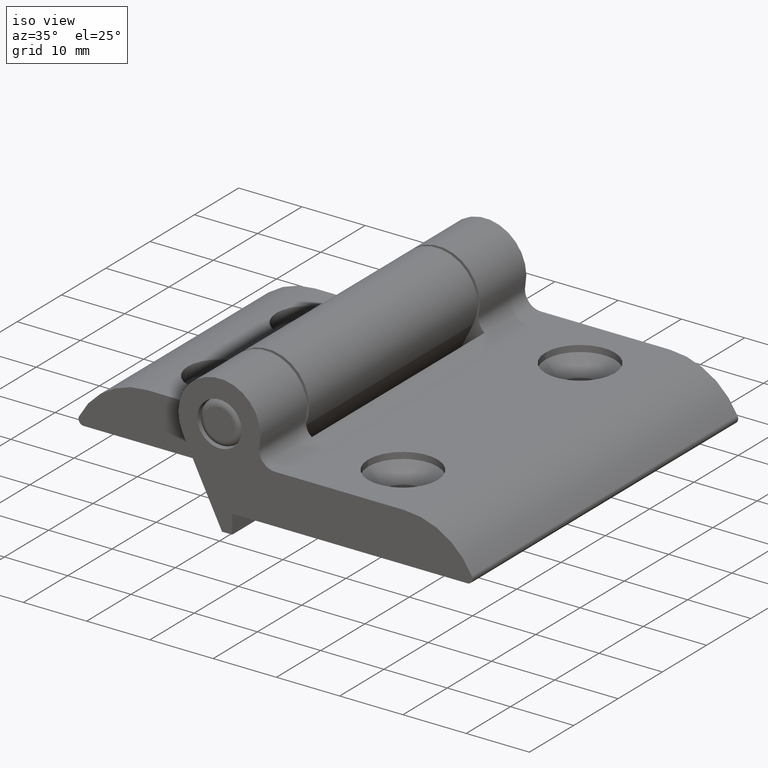
[diagram: clean part render]
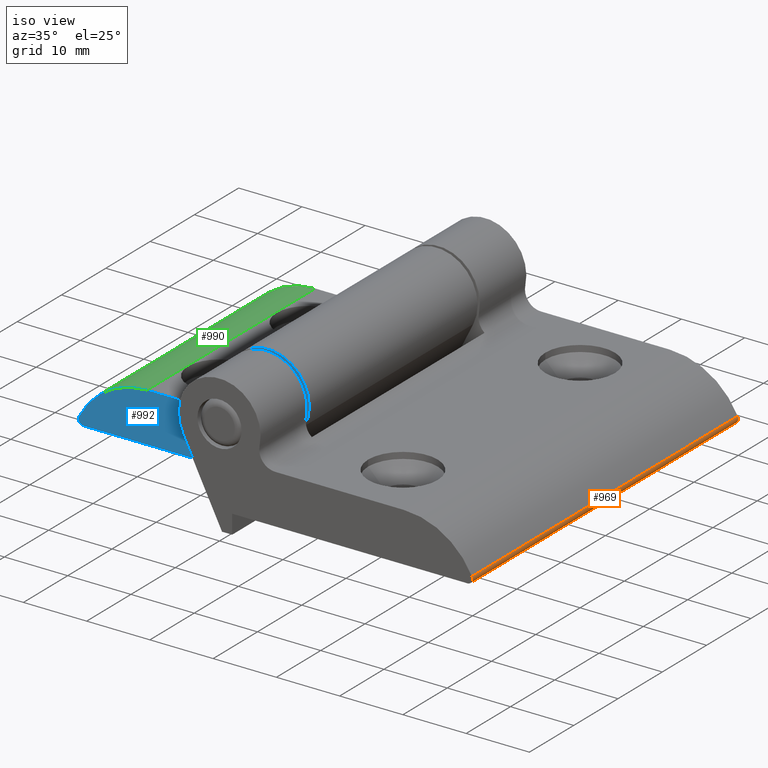
[diagram: same view with three faces highlighted in distinct colors, each labeled with its STEP entity id]
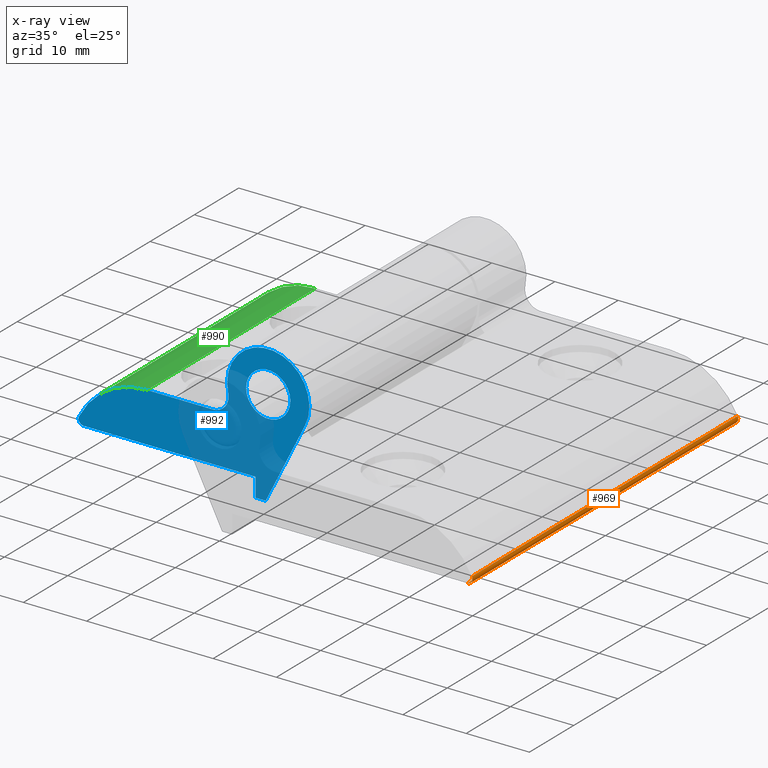
[diagram: x-ray of the same camera — body ghosted, the three highlighted faces saturated]
A machine part, iso view with three faces highlighted in distinct colors.
The next image is the same camera in x-ray (body ghosted, the three faces saturated) — at least one of them is partly hidden behind the body in this view.
Their STEP definitions:

[orange] entity #969 — the highlighted face is a freeform B-spline surface patch.
#37=B_SPLINE_CURVE_WITH_KNOTS('',3,(#1668,#1669,#1670,#1671,#1672,#1673),
 .UNSPECIFIED.,.F.,.F.,(4,1,1,4),(0.228202346334164,0.285714285714286,0.571428571428571,
1.),.UNSPECIFIED.);
#38=B_SPLINE_CURVE_WITH_KNOTS('',3,(#1675,#1676,#1677,#1678),
 .UNSPECIFIED.,.F.,.F.,(4,4),(-6.,0.),.UNSPECIFIED.);
#39=B_SPLINE_CURVE_WITH_KNOTS('',3,(#1680,#1681,#1682,#1683,#1684,#1685),
 .UNSPECIFIED.,.F.,.F.,(4,1,1,4),(-1.,-0.571428571428571,-0.285714285714286,
-0.228202346334164),.UNSPECIFIED.);
#40=B_SPLINE_CURVE_WITH_KNOTS('',3,(#1687,#1688,#1689,#1690),
 .UNSPECIFIED.,.F.,.F.,(4,4),(-0.228202346334164,0.),.UNSPECIFIED.);
#41=B_SPLINE_CURVE_WITH_KNOTS('',3,(#1692,#1693,#1694,#1695),
 .UNSPECIFIED.,.F.,.F.,(4,4),(0.,6.),.UNSPECIFIED.);
#42=B_SPLINE_CURVE_WITH_KNOTS('',3,(#1696,#1697,#1698,#1699),
 .UNSPECIFIED.,.F.,.F.,(4,4),(0.,0.228202346334164),.UNSPECIFIED.);
#49=B_SPLINE_SURFACE_WITH_KNOTS('',3,3,((#1642,#1643,#1644,#1645),(#1646,
#1647,#1648,#1649),(#1650,#1651,#1652,#1653),(#1654,#1655,#1656,#1657),
(#1658,#1659,#1660,#1661),(#1662,#1663,#1664,#1665)),.UNSPECIFIED.,.F.,
 .F.,.F.,(4,1,1,4),(4,4),(0.,0.285714285714286,0.571428571428571,1.),(0.,
6.),.UNSPECIFIED.);
#126=FACE_OUTER_BOUND('',#177,.T.);
#177=EDGE_LOOP('',(#766,#767,#768,#769,#770,#771));
#463=VERTEX_POINT('',#1666);
#464=VERTEX_POINT('',#1667);
#465=VERTEX_POINT('',#1674);
#466=VERTEX_POINT('',#1679);
#467=VERTEX_POINT('',#1686);
#468=VERTEX_POINT('',#1691);
#582=EDGE_CURVE('',#463,#464,#37,.T.);
#583=EDGE_CURVE('',#464,#465,#38,.T.);
#584=EDGE_CURVE('',#465,#466,#39,.T.);
#585=EDGE_CURVE('',#466,#467,#40,.T.);
#586=EDGE_CURVE('',#467,#468,#41,.T.);
#587=EDGE_CURVE('',#468,#463,#42,.T.);
#766=ORIENTED_EDGE('',*,*,#582,.T.);
#767=ORIENTED_EDGE('',*,*,#583,.T.);
#768=ORIENTED_EDGE('',*,*,#584,.T.);
#769=ORIENTED_EDGE('',*,*,#585,.T.);
#770=ORIENTED_EDGE('',*,*,#586,.T.);
#771=ORIENTED_EDGE('',*,*,#587,.T.);
#969=ADVANCED_FACE('',(#126),#49,.F.);
#1642=CARTESIAN_POINT('Ctrl Pts',(39.9140261061395,30.,-11.1248543994776));
#1643=CARTESIAN_POINT('Ctrl Pts',(39.9140261061395,10.,-11.1248543994776));
#1644=CARTESIAN_POINT('Ctrl Pts',(39.9140261061395,-10.,-11.1248543994776));
#1645=CARTESIAN_POINT('Ctrl Pts',(39.9140261061395,-30.,-11.1248543994776));
#1646=CARTESIAN_POINT('Ctrl Pts',(39.9844922625149,30.,-11.2655053740222));
#1647=CARTESIAN_POINT('Ctrl Pts',(39.9844922625149,10.,-11.2655053740222));
#1648=CARTESIAN_POINT('Ctrl Pts',(39.9844922625149,-10.,-11.2655053740222));
#1649=CARTESIAN_POINT('Ctrl Pts',(39.9844922625149,-30.,-11.2655053740222));
#1650=CARTESIAN_POINT('Ctrl Pts',(40.0407595921038,30.,-11.5879287519314));
#1651=CARTESIAN_POINT('Ctrl Pts',(40.0407595921038,10.,-11.5879287519314));
#1652=CARTESIAN_POINT('Ctrl Pts',(40.0407595921038,-10.,-11.5879287519314));
#1653=CARTESIAN_POINT('Ctrl Pts',(40.0407595921038,-30.,-11.5879287519314));
#1654=CARTESIAN_POINT('Ctrl Pts',(39.8135844392406,30.,-12.1166805367457));
#1655=CARTESIAN_POINT('Ctrl Pts',(39.8135844392406,10.,-12.1166805367457));
#1656=CARTESIAN_POINT('Ctrl Pts',(39.8135844392406,-10.,-12.1166805367457));
#1657=CARTESIAN_POINT('Ctrl Pts',(39.8135844392406,-30.,-12.1166805367457));
#1658=CARTESIAN_POINT('Ctrl Pts',(39.4243687454637,30.,-12.3));
#1659=CARTESIAN_POINT('Ctrl Pts',(39.4243687454637,10.,-12.3));
#1660=CARTESIAN_POINT('Ctrl Pts',(39.4243687454637,-10.,-12.3));
#1661=CARTESIAN_POINT('Ctrl Pts',(39.4243687454637,-30.,-12.3));
#1662=CARTESIAN_POINT('Ctrl Pts',(39.1883954511527,30.,-12.3));
#1663=CARTESIAN_POINT('Ctrl Pts',(39.1883954511527,10.,-12.3));
#1664=CARTESIAN_POINT('Ctrl Pts',(39.1883954511527,-10.,-12.3));
#1665=CARTESIAN_POINT('Ctrl Pts',(39.1883954511527,-30.,-12.3));
#1666=CARTESIAN_POINT('',(40.,-30.,-11.4883954511528));
#1667=CARTESIAN_POINT('',(39.1883954511527,-30.,-12.3));
#1668=CARTESIAN_POINT('Ctrl Pts',(39.9997218378176,-30.,-11.488161456285));
#1669=CARTESIAN_POINT('Ctrl Pts',(39.999756441912,-30.,-11.5197933238789));
#1670=CARTESIAN_POINT('Ctrl Pts',(39.9889176891916,-30.,-11.7085911498544));
#1671=CARTESIAN_POINT('Ctrl Pts',(39.8135844392406,-30.,-12.1166805367457));
#1672=CARTESIAN_POINT('Ctrl Pts',(39.4243687454637,-30.,-12.3));
#1673=CARTESIAN_POINT('Ctrl Pts',(39.1883954511527,-30.,-12.3));
#1674=CARTESIAN_POINT('',(39.1883954511527,30.,-12.3));
#1675=CARTESIAN_POINT('Ctrl Pts',(39.1883954511527,-30.,-12.3));
#1676=CARTESIAN_POINT('Ctrl Pts',(39.1883954511527,-10.,-12.3));
#1677=CARTESIAN_POINT('Ctrl Pts',(39.1883954511527,10.,-12.3));
#1678=CARTESIAN_POINT('Ctrl Pts',(39.1883954511527,30.,-12.3));
#1679=CARTESIAN_POINT('',(40.,30.,-11.4883954511528));
#1680=CARTESIAN_POINT('Ctrl Pts',(39.1883954511527,30.,-12.3));
#1681=CARTESIAN_POINT('Ctrl Pts',(39.4243687454637,30.,-12.3));
#1682=CARTESIAN_POINT('Ctrl Pts',(39.8135844392406,30.,-12.1166805367457));
#1683=CARTESIAN_POINT('Ctrl Pts',(39.9889176891916,30.,-11.7085911498544));
#1684=CARTESIAN_POINT('Ctrl Pts',(39.999756441912,30.,-11.5197933238789));
#1685=CARTESIAN_POINT('Ctrl Pts',(39.9997218378176,30.,-11.488161456285));
#1686=CARTESIAN_POINT('',(39.9140261061395,30.,-11.1248543994776));
#1687=CARTESIAN_POINT('Ctrl Pts',(39.9997218378176,30.,-11.488161456285));
#1688=CARTESIAN_POINT('Ctrl Pts',(39.9995845317968,30.,-11.3626489717178));
#1689=CARTESIAN_POINT('Ctrl Pts',(39.9703080039166,30.,-11.237193487896));
#1690=CARTESIAN_POINT('Ctrl Pts',(39.9140261061395,30.,-11.1248543994776));
#1691=CARTESIAN_POINT('',(39.9140261061395,-30.,-11.1248543994776));
#1692=CARTESIAN_POINT('Ctrl Pts',(39.9140261061395,30.,-11.1248543994776));
#1693=CARTESIAN_POINT('Ctrl Pts',(39.9140261061395,10.,-11.1248543994776));
#1694=CARTESIAN_POINT('Ctrl Pts',(39.9140261061395,-10.,-11.1248543994776));
#1695=CARTESIAN_POINT('Ctrl Pts',(39.9140261061395,-30.,-11.1248543994776));
#1696=CARTESIAN_POINT('Ctrl Pts',(39.9140261061395,-30.,-11.1248543994776));
#1697=CARTESIAN_POINT('Ctrl Pts',(39.9703080039166,-30.,-11.237193487896));
#1698=CARTESIAN_POINT('Ctrl Pts',(39.9995845317968,-30.,-11.3626489717178));
#1699=CARTESIAN_POINT('Ctrl Pts',(39.9997218378176,-30.,-11.488161456285));

[blue] entity #992 — the highlighted planar face has unit normal (-0, -1, -0).
#45=B_SPLINE_CURVE_WITH_KNOTS('',3,(#1801,#1802,#1803,#1804,#1805,#1806),
 .UNSPECIFIED.,.F.,.F.,(4,1,1,4),(-1.,-0.571428571428571,-0.285714285714286,
-0.228202346334165),.UNSPECIFIED.);
#46=B_SPLINE_CURVE_WITH_KNOTS('',3,(#1808,#1809,#1810,#1811),
 .UNSPECIFIED.,.F.,.F.,(4,4),(-0.228202346334165,0.),.UNSPECIFIED.);
#64=FACE_BOUND('',#212,.T.);
#84=PLANE('',#1184);
#149=FACE_OUTER_BOUND('',#211,.T.);
#211=EDGE_LOOP('',(#911,#912,#913,#914,#915,#916,#917,#918,#919,#920));
#212=EDGE_LOOP('',(#921,#922));
#269=LINE('',#1826,#336);
#277=LINE('',#1853,#344);
#279=LINE('',#1857,#346);
#281=LINE('',#1860,#348);
#283=LINE('',#1866,#350);
#336=VECTOR('',#1423,10.);
#344=VECTOR('',#1449,10.);
#346=VECTOR('',#1453,10.);
#348=VECTOR('',#1457,10.);
#350=VECTOR('',#1465,10.);
#397=CIRCLE('',#1166,3.5);
#398=CIRCLE('',#1167,3.5);
#403=CIRCLE('',#1175,2.5);
#404=CIRCLE('',#1177,6.5);
#405=CIRCLE('',#1182,12.);
#485=VERTEX_POINT('',#1756);
#486=VERTEX_POINT('',#1757);
#490=VERTEX_POINT('',#1795);
#491=VERTEX_POINT('',#1800);
#492=VERTEX_POINT('',#1807);
#495=VERTEX_POINT('',#1824);
#502=VERTEX_POINT('',#1842);
#503=VERTEX_POINT('',#1844);
#504=VERTEX_POINT('',#1848);
#505=VERTEX_POINT('',#1852);
#506=VERTEX_POINT('',#1856);
#507=VERTEX_POINT('',#1862);
#615=EDGE_CURVE('',#485,#486,#397,.T.);
#616=EDGE_CURVE('',#486,#485,#398,.T.);
#621=EDGE_CURVE('',#490,#491,#45,.T.);
#622=EDGE_CURVE('',#491,#492,#46,.T.);
#627=EDGE_CURVE('',#490,#495,#269,.T.);
#636=EDGE_CURVE('',#503,#502,#403,.T.);
#638=EDGE_CURVE('',#504,#503,#404,.T.);
#640=EDGE_CURVE('',#505,#504,#277,.T.);
#642=EDGE_CURVE('',#506,#505,#279,.T.);
#644=EDGE_CURVE('',#495,#506,#281,.T.);
#645=EDGE_CURVE('',#507,#492,#405,.T.);
#647=EDGE_CURVE('',#502,#507,#283,.T.);
#911=ORIENTED_EDGE('',*,*,#621,.F.);
#912=ORIENTED_EDGE('',*,*,#627,.T.);
#913=ORIENTED_EDGE('',*,*,#644,.T.);
#914=ORIENTED_EDGE('',*,*,#642,.T.);
#915=ORIENTED_EDGE('',*,*,#640,.T.);
#916=ORIENTED_EDGE('',*,*,#638,.T.);
#917=ORIENTED_EDGE('',*,*,#636,.T.);
#918=ORIENTED_EDGE('',*,*,#647,.T.);
#919=ORIENTED_EDGE('',*,*,#645,.T.);
#920=ORIENTED_EDGE('',*,*,#622,.F.);
#921=ORIENTED_EDGE('',*,*,#615,.T.);
#922=ORIENTED_EDGE('',*,*,#616,.T.);
#992=ADVANCED_FACE('',(#149,#64),#84,.T.);
#1166=AXIS2_PLACEMENT_3D('',#1758,#1412,#1413);
#1167=AXIS2_PLACEMENT_3D('',#1759,#1414,#1415);
#1175=AXIS2_PLACEMENT_3D('',#1845,#1439,#1440);
#1177=AXIS2_PLACEMENT_3D('',#1849,#1444,#1445);
#1182=AXIS2_PLACEMENT_3D('',#1863,#1460,#1461);
#1184=AXIS2_PLACEMENT_3D('',#1867,#1466,#1467);
#1412=DIRECTION('center_axis',(0.,-1.,0.));
#1413=DIRECTION('ref_axis',(-1.,0.,0.));
#1414=DIRECTION('center_axis',(0.,-1.,0.));
#1415=DIRECTION('ref_axis',(-1.,0.,0.));
#1423=DIRECTION('',(-1.,0.,0.));
#1439=DIRECTION('center_axis',(0.,-1.,0.));
#1440=DIRECTION('ref_axis',(0.,0.,1.));
#1444=DIRECTION('center_axis',(0.,1.,0.));
#1445=DIRECTION('ref_axis',(-0.893929642887644,0.,-0.448207310925167));
#1449=DIRECTION('',(-0.448207310925167,0.,0.893929642887644));
#1453=DIRECTION('',(-1.,0.,0.));
#1457=DIRECTION('',(-1.85037170770859E-16,0.,-1.));
#1460=DIRECTION('center_axis',(0.,1.,0.));
#1461=DIRECTION('ref_axis',(1.85037170770859E-16,0.,1.));
#1465=DIRECTION('',(1.,0.,-2.13294600378817E-16));
#1466=DIRECTION('center_axis',(0.,1.,0.));
#1467=DIRECTION('ref_axis',(0.,0.,1.));
#1756=CARTESIAN_POINT('',(-3.5,19.,-1.38777878078145E-15));
#1757=CARTESIAN_POINT('',(3.5,19.,-1.81640516048302E-15));
#1758=CARTESIAN_POINT('Origin',(0.,19.,-1.38777878078145E-15));
#1759=CARTESIAN_POINT('Origin',(0.,19.,-1.38777878078145E-15));
#1795=CARTESIAN_POINT('',(29.1883954511527,19.,-12.3));
#1800=CARTESIAN_POINT('',(30.,19.,-11.4883954511528));
#1801=CARTESIAN_POINT('Ctrl Pts',(29.1883954511527,19.,-12.3));
#1802=CARTESIAN_POINT('Ctrl Pts',(29.4243687454637,19.,-12.3));
#1803=CARTESIAN_POINT('Ctrl Pts',(29.8136087726109,19.,-12.1167175626109));
#1804=CARTESIAN_POINT('Ctrl Pts',(29.9889384737779,19.,-11.7086140698532));
#1805=CARTESIAN_POINT('Ctrl Pts',(29.999769476235,19.,-11.5198069744592));
#1806=CARTESIAN_POINT('Ctrl Pts',(29.9997335155533,19.,-11.4881735629194));
#1807=CARTESIAN_POINT('',(29.9140261061395,19.,-11.1248543994776));
#1808=CARTESIAN_POINT('Ctrl Pts',(29.9997335155533,19.,-11.4881735629194));
#1809=CARTESIAN_POINT('Ctrl Pts',(29.9995908267126,19.,-11.3626549521101));
#1810=CARTESIAN_POINT('Ctrl Pts',(29.9703080039166,19.,-11.237193487896));
#1811=CARTESIAN_POINT('Ctrl Pts',(29.9140261061395,19.,-11.1248543994776));
#1824=CARTESIAN_POINT('',(2.,19.,-12.3));
#1826=CARTESIAN_POINT('',(30.,19.,-12.3));
#1842=CARTESIAN_POINT('',(8.77496438739212,19.,-4.5));
#1844=CARTESIAN_POINT('',(6.3374742797832,19.,-1.44444444444445));
#1845=CARTESIAN_POINT('Origin',(8.77496438739212,19.,-2.));
#1848=CARTESIAN_POINT('',(-5.81054267876969,19.,-2.91334752101359));
#1849=CARTESIAN_POINT('Origin',(0.,19.,-1.38777878078145E-15));
#1852=CARTESIAN_POINT('',(0.399999999999999,19.,-15.3));
#1853=CARTESIAN_POINT('',(0.399999999999999,19.,-15.3));
#1856=CARTESIAN_POINT('',(2.,19.,-15.3));
#1857=CARTESIAN_POINT('',(2.,19.,-15.3));
#1860=CARTESIAN_POINT('',(2.,19.,-12.3));
#1862=CARTESIAN_POINT('',(19.1851953323234,19.,-4.5));
#1863=CARTESIAN_POINT('Origin',(19.1851953323234,19.,-16.5));
#1866=CARTESIAN_POINT('',(8.77496438739212,19.,-4.5));
#1867=CARTESIAN_POINT('Origin',(9.6173661507457,19.,-6.85004590996859));

[green] entity #990 — the highlighted cylindrical surface (partial cylindrical patch) has radius 12 mm, axis along (-0, -1, -0).
#47=B_SPLINE_CURVE_WITH_KNOTS('',3,(#1813,#1814,#1815,#1816),
 .UNSPECIFIED.,.F.,.F.,(4,4),(0.,3.8),.UNSPECIFIED.);
#104=CYLINDRICAL_SURFACE('',#1181,12.);
#147=FACE_OUTER_BOUND('',#207,.T.);
#207=EDGE_LOOP('',(#899,#900,#901,#902));
#282=LINE('',#1864,#349);
#349=VECTOR('',#1462,10.);
#400=CIRCLE('',#1171,12.);
#405=CIRCLE('',#1182,12.);
#492=VERTEX_POINT('',#1807);
#493=VERTEX_POINT('',#1812);
#496=VERTEX_POINT('',#1828);
#507=VERTEX_POINT('',#1862);
#623=EDGE_CURVE('',#492,#493,#47,.T.);
#628=EDGE_CURVE('',#493,#496,#400,.T.);
#645=EDGE_CURVE('',#507,#492,#405,.T.);
#646=EDGE_CURVE('',#496,#507,#282,.T.);
#899=ORIENTED_EDGE('',*,*,#623,.F.);
#900=ORIENTED_EDGE('',*,*,#645,.F.);
#901=ORIENTED_EDGE('',*,*,#646,.F.);
#902=ORIENTED_EDGE('',*,*,#628,.F.);
#990=ADVANCED_FACE('',(#147),#104,.T.);
#1171=AXIS2_PLACEMENT_3D('',#1829,#1426,#1427);
#1181=AXIS2_PLACEMENT_3D('',#1861,#1458,#1459);
#1182=AXIS2_PLACEMENT_3D('',#1863,#1460,#1461);
#1426=DIRECTION('center_axis',(0.,-1.,0.));
#1427=DIRECTION('ref_axis',(1.85037170770859E-16,0.,1.));
#1458=DIRECTION('center_axis',(0.,1.,0.));
#1459=DIRECTION('ref_axis',(1.85037170770859E-16,0.,1.));
#1460=DIRECTION('center_axis',(0.,1.,0.));
#1461=DIRECTION('ref_axis',(1.85037170770859E-16,0.,1.));
#1462=DIRECTION('',(0.,1.,0.));
#1807=CARTESIAN_POINT('',(29.9140261061395,19.,-11.1248543994776));
#1812=CARTESIAN_POINT('',(29.9140261061395,-19.,-11.1248543994776));
#1813=CARTESIAN_POINT('Ctrl Pts',(29.9140261061395,19.,-11.1248543994776));
#1814=CARTESIAN_POINT('Ctrl Pts',(29.9140261061395,6.33333333333334,-11.1248543994776));
#1815=CARTESIAN_POINT('Ctrl Pts',(29.9140261061395,-6.33333333333334,-11.1248543994776));
#1816=CARTESIAN_POINT('Ctrl Pts',(29.9140261061395,-19.,-11.1248543994776));
#1828=CARTESIAN_POINT('',(19.1851953323234,-19.,-4.5));
#1829=CARTESIAN_POINT('Origin',(19.1851953323234,-19.,-16.5));
#1861=CARTESIAN_POINT('Origin',(19.1851953323234,0.,-16.5));
#1862=CARTESIAN_POINT('',(19.1851953323234,19.,-4.5));
#1863=CARTESIAN_POINT('Origin',(19.1851953323234,19.,-16.5));
#1864=CARTESIAN_POINT('',(19.1851953323234,0.,-4.5));